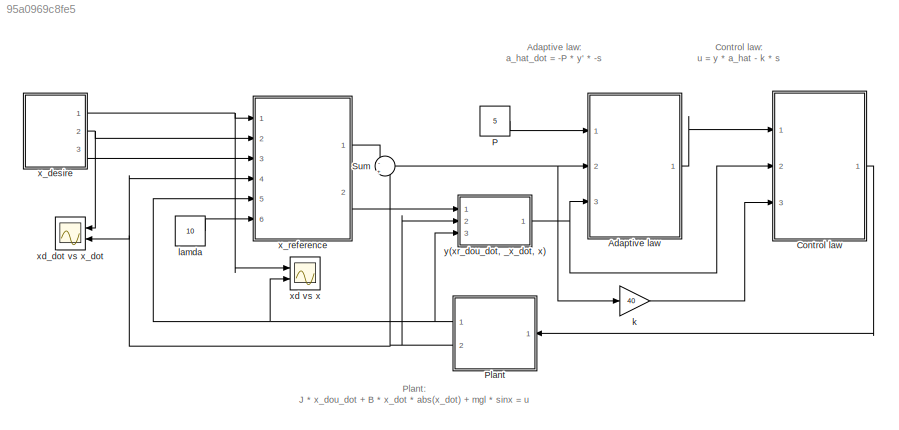
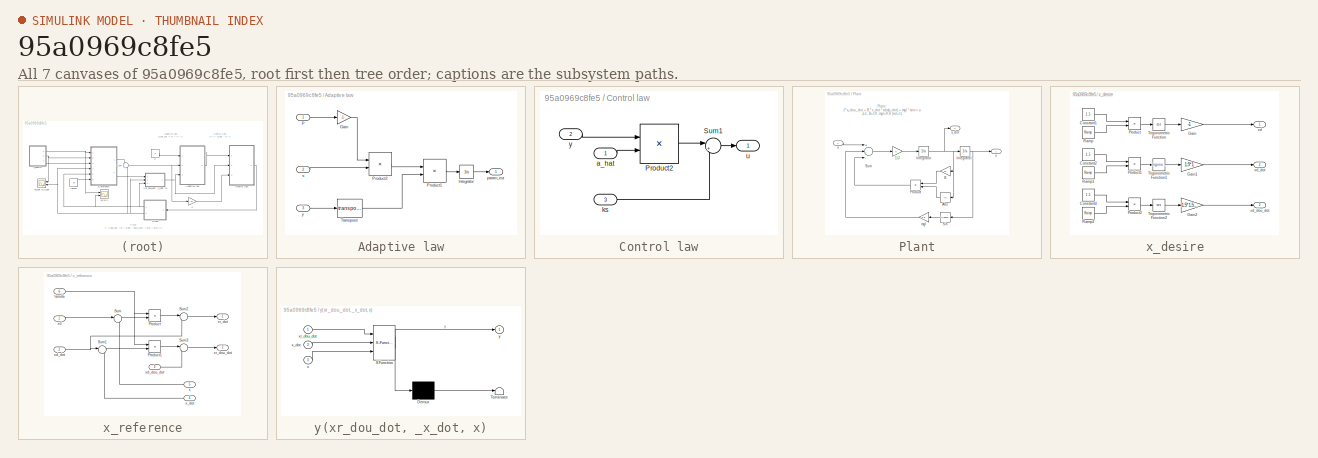
[diagram: thumbnail index - all 7 canvases of the model, root first then tree order]
MODEL slx_95a0969c8fe5
KIND model
CONFIG AbsTol = auto
CONFIG EnableMultiTasking = off
CONFIG FixedStep = auto
CONFIG MaxStep = auto
CONFIG MinStep = auto
CONFIG RelTol = 1e-3
CONFIG SampleTimeConstraint = Unconstrained
CONFIG Solver = ode45
CONFIG SolverName = ode45
CONFIG StartTime = 0.0
CONFIG StopTime = 20
BLOCK [SubSystem] Adaptive law
  Ports = [3, 1]
  RequestExecContextInheritance = off
BLOCK [Gain] Adaptive law/Gain
  Gain = -1
  OutDataTypeStr = Inherit: Inherit via internal rule
  ParamDataTypeStr = Inherit: Inherit via internal rule
  SaturateOnIntegerOverflow = off
BLOCK [Integrator] Adaptive law/Integrator
  Ports = [1, 1]
BLOCK [Inport] Adaptive law/P
  IconDisplay = Port number
BLOCK [Product] Adaptive law/Product1
  InputSameDT = off
  OutDataTypeStr = Inherit: Inherit via internal rule
  Ports = [2, 1]
  SaturateOnIntegerOverflow = off
BLOCK [Product] Adaptive law/Product2
  InputSameDT = off
  OutDataTypeStr = Inherit: Inherit via internal rule
  Ports = [2, 1]
  SaturateOnIntegerOverflow = off
BLOCK [Math] Adaptive law/Transpose
  Operator = transpose
  Ports = [1, 1]
BLOCK [Outport] Adaptive law/param_est
  IconDisplay = Port number
BLOCK [Inport] Adaptive law/s
  IconDisplay = Port number
  Port = 2
BLOCK [Inport] Adaptive law/y
  IconDisplay = Port number
  Port = 3
BLOCK [SubSystem] Control law
  Ports = [3, 1]
  RequestExecContextInheritance = off
BLOCK [Product] Control law/Product2
  InputSameDT = off
  Multiplication = Matrix(*)
  OutDataTypeStr = Inherit: Inherit via internal rule
  Ports = [2, 1]
  SaturateOnIntegerOverflow = off
BLOCK [Sum] Control law/Sum1
  IconShape = round
  InputSameDT = off
  Inputs = |+-
  OutDataTypeStr = Inherit: Inherit via internal rule
  Ports = [2, 1]
  SaturateOnIntegerOverflow = off
BLOCK [Inport] Control law/a_hat
  IconDisplay = Port number
BLOCK [Inport] Control law/ks
  IconDisplay = Port number
  Port = 3
BLOCK [Outport] Control law/u
  IconDisplay = Port number
BLOCK [Inport] Control law/y
  IconDisplay = Port number
  Port = 2
BLOCK [Constant] P
  Value = 5
BLOCK [SubSystem] Plant
  Ports = [1, 2]
  RequestExecContextInheritance = off
BLOCK [Gain] Plant/1//J
  OutDataTypeStr = Inherit: Inherit via internal rule
  ParamDataTypeStr = Inherit: Inherit via internal rule
  SaturateOnIntegerOverflow = off
BLOCK [Abs] Plant/Abs
  SaturateOnIntegerOverflow = off
BLOCK [Gain] Plant/B
  Gain = 10
  OutDataTypeStr = Inherit: Inherit via internal rule
  ParamDataTypeStr = Inherit: Inherit via internal rule
  SaturateOnIntegerOverflow = off
BLOCK [Integrator] Plant/Integrator
  Ports = [1, 1]
BLOCK [Integrator] Plant/Integrator1
  Ports = [1, 1]
BLOCK [Product] Plant/Product
  InputSameDT = off
  OutDataTypeStr = Inherit: Inherit via internal rule
  Ports = [2, 1]
  RndMeth = Floor
  SaturateOnIntegerOverflow = off
BLOCK [Trigonometry] Plant/Sin
  Ports = [1, 1]
BLOCK [Sum] Plant/Sum
  InputSameDT = off
  Inputs = +--
  OutDataTypeStr = Inherit: Inherit via internal rule
  Ports = [3, 1]
  SaturateOnIntegerOverflow = off
BLOCK [Gain] Plant/mgl
  Gain = 9.8
  OutDataTypeStr = Inherit: Inherit via internal rule
  ParamDataTypeStr = Inherit: Inherit via internal rule
  SaturateOnIntegerOverflow = off
BLOCK [Inport] Plant/u
  IconDisplay = Port number
BLOCK [Outport] Plant/x
  IconDisplay = Port number
BLOCK [Outport] Plant/x_dot
  IconDisplay = Port number
  Port = 2
BLOCK [Sum] Sum
  IconShape = round
  InputSameDT = off
  Inputs = -|+
  OutDataTypeStr = Inherit: Inherit via internal rule
  Ports = [2, 1]
  SaturateOnIntegerOverflow = off
BLOCK [Gain] k
  Gain = 40
  OutDataTypeStr = Inherit: Inherit via internal rule
  ParamDataTypeStr = Inherit: Inherit via internal rule
  SaturateOnIntegerOverflow = off
BLOCK [Constant] lamda
  Value = 10
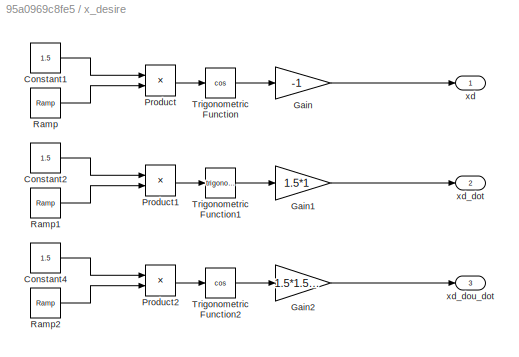
BLOCK [SubSystem] x_desire
  Ports = [0, 3]
  RequestExecContextInheritance = off
BLOCK [Constant] x_desire/Constant1
  Value = 1.5
BLOCK [Constant] x_desire/Constant2
  Value = 1.5
BLOCK [Constant] x_desire/Constant4
  Value = 1.5
BLOCK [Gain] x_desire/Gain
  Gain = -1
  OutDataTypeStr = Inherit: Inherit via internal rule
  ParamDataTypeStr = Inherit: Inherit via internal rule
  SaturateOnIntegerOverflow = off
BLOCK [Gain] x_desire/Gain1
  Gain = 1.5*1
  OutDataTypeStr = Inherit: Inherit via internal rule
  ParamDataTypeStr = Inherit: Inherit via internal rule
  SaturateOnIntegerOverflow = off
BLOCK [Gain] x_desire/Gain2
  Gain = 1.5*1.5*1
  OutDataTypeStr = Inherit: Inherit via internal rule
  ParamDataTypeStr = Inherit: Inherit via internal rule
  SaturateOnIntegerOverflow = off
BLOCK [Product] x_desire/Product
  InputSameDT = off
  OutDataTypeStr = Inherit: Inherit via internal rule
  Ports = [2, 1]
  SaturateOnIntegerOverflow = off
BLOCK [Product] x_desire/Product1
  InputSameDT = off
  OutDataTypeStr = Inherit: Inherit via internal rule
  Ports = [2, 1]
  SaturateOnIntegerOverflow = off
BLOCK [Product] x_desire/Product2
  InputSameDT = off
  OutDataTypeStr = Inherit: Inherit via internal rule
  Ports = [2, 1]
  SaturateOnIntegerOverflow = off
BLOCK [Reference] x_desire/Ramp  REF=simulink/Sources/Ramp
  Ports = [0, 1]
  SourceBlock = simulink/Sources/Ramp
  SourceProductBaseCode = SL
  SourceProductName = Simulink
  SourceType = Ramp
BLOCK [Reference] x_desire/Ramp1  REF=simulink/Sources/Ramp
  Ports = [0, 1]
  SourceBlock = simulink/Sources/Ramp
  SourceProductBaseCode = SL
  SourceProductName = Simulink
  SourceType = Ramp
BLOCK [Reference] x_desire/Ramp2  REF=simulink/Sources/Ramp
  Ports = [0, 1]
  SourceBlock = simulink/Sources/Ramp
  SourceProductBaseCode = SL
  SourceProductName = Simulink
  SourceType = Ramp
BLOCK [Trigonometry] x_desire/Trigonometric Function
  Operator = cos
  Ports = [1, 1]
BLOCK [Trigonometry] x_desire/Trigonometric Function1
  Ports = [1, 1]
BLOCK [Trigonometry] x_desire/Trigonometric Function2
  Operator = cos
  Ports = [1, 1]
BLOCK [Outport] x_desire/xd
  IconDisplay = Port number
BLOCK [Outport] x_desire/xd_dot 
  IconDisplay = Port number
  Port = 2
BLOCK [Outport] x_desire/xd_dou_dot
  IconDisplay = Port number
  Port = 3
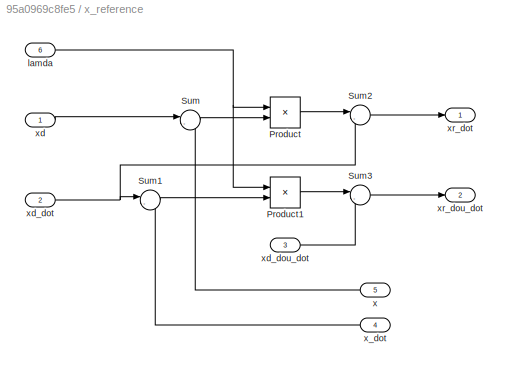
BLOCK [SubSystem] x_reference
  Ports = [6, 2]
  RequestExecContextInheritance = off
BLOCK [Product] x_reference/Product
  InputSameDT = off
  OutDataTypeStr = Inherit: Inherit via internal rule
  Ports = [2, 1]
  RndMeth = Floor
  SaturateOnIntegerOverflow = off
BLOCK [Product] x_reference/Product1
  InputSameDT = off
  OutDataTypeStr = Inherit: Inherit via internal rule
  Ports = [2, 1]
  RndMeth = Floor
  SaturateOnIntegerOverflow = off
BLOCK [Sum] x_reference/Sum
  IconShape = round
  InputSameDT = off
  Inputs = |-+
  OutDataTypeStr = Inherit: Inherit via internal rule
  Ports = [2, 1]
  SaturateOnIntegerOverflow = off
BLOCK [Sum] x_reference/Sum1
  IconShape = round
  InputSameDT = off
  Inputs = |-+
  OutDataTypeStr = Inherit: Inherit via internal rule
  Ports = [2, 1]
  SaturateOnIntegerOverflow = off
BLOCK [Sum] x_reference/Sum2
  IconShape = round
  InputSameDT = off
  Inputs = |-+
  OutDataTypeStr = Inherit: Inherit via internal rule
  Ports = [2, 1]
  SaturateOnIntegerOverflow = off
BLOCK [Sum] x_reference/Sum3
  IconShape = round
  InputSameDT = off
  Inputs = |-+
  OutDataTypeStr = Inherit: Inherit via internal rule
  Ports = [2, 1]
  SaturateOnIntegerOverflow = off
BLOCK [Inport] x_reference/lamda
  IconDisplay = Port number
  Port = 6
BLOCK [Inport] x_reference/x
  IconDisplay = Port number
  Port = 5
BLOCK [Inport] x_reference/x_dot
  IconDisplay = Port number
  Port = 4
BLOCK [Inport] x_reference/xd 
  IconDisplay = Port number
BLOCK [Inport] x_reference/xd_dot
  IconDisplay = Port number
  Port = 2
BLOCK [Inport] x_reference/xd_dou_dot
  IconDisplay = Port number
  Port = 3
BLOCK [Outport] x_reference/xr_dot
  IconDisplay = Port number
BLOCK [Outport] x_reference/xr_dou_dot
  IconDisplay = Port number
  Port = 2
BLOCK [Scope] xd vs x
  Floating = off
  NumInputPorts = 2
  Ports = [2]
  ScopeSpecificationString = Simulink.scopes.TimeScopeBlockCfg('CurrentConfiguration', extmgr.ConfigurationSet(extmgr.Configuration('Core','General UI',true),extmgr.Configuration('Core','Source UI',true),extmgr.Configuration('Sources','WiredSimulink',true),extmgr.Configuration('Visuals','Time Domain',true,'SerializedDisplays',{struct('MinYLimReal','-1.25254','MaxYLimReal','1.25263','YLabelReal','','MinYLimMag','0.00000','MaxY...<+1369ch>
BLOCK [Scope] xd_dot vs x_dot
  Floating = off
  NumInputPorts = 2
  Ports = [2]
  ScopeSpecificationString = Simulink.scopes.TimeScopeBlockCfg('CurrentConfiguration', extmgr.ConfigurationSet(extmgr.Configuration('Core','General UI',true),extmgr.Configuration('Core','Source UI',true),extmgr.Configuration('Sources','WiredSimulink',true,'DataLoggingVariableName','ScopeData1'),extmgr.Configuration('Visuals','Time Domain',true,'SerializedDisplays',{struct('MinYLimReal','-2.94648','MaxYLimReal','0.57281','YLab...<+1452ch>
BLOCK [SubSystem] y(xr_dou_dot, _x_dot, x)
  ErrorFcn = Stateflow.Translate.translate
  PermitHierarchicalResolution = ExplicitOnly
  Ports = [3, 1]
  RequestExecContextInheritance = off
  SFBlockType = MATLAB Function
  TreatAsAtomicUnit = on
BLOCK [Demux] y(xr_dou_dot, _x_dot, x)/ Demux 
  Outputs = 1
  Ports = [1, 1]
BLOCK [S-Function] y(xr_dou_dot, _x_dot, x)/ SFunction 
  EnableBusSupport = on
  FunctionName = sf_sfun
  PortCounts = [3 2]
  Ports = [3, 2]
  SFcnIsStateOwnerBlock = off
  SFunctionDeploymentMode = off
  Tag = Stateflow S-Function Adaptive_control 2
BLOCK [Terminator] y(xr_dou_dot, _x_dot, x)/ Terminator 
BLOCK [Inport] y(xr_dou_dot, _x_dot, x)/x
  IconDisplay = Port number
  Port = 3
BLOCK [Inport] y(xr_dou_dot, _x_dot, x)/x_dot
  IconDisplay = Port number
  Port = 2
BLOCK [Inport] y(xr_dou_dot, _x_dot, x)/xr_dou_dot
  IconDisplay = Port number
BLOCK [Outport] y(xr_dou_dot, _x_dot, x)/y
  IconDisplay = Port number
ANNOTATION (root): Adaptive law: a_hat_dot = -P * y' * -s
ANNOTATION (root): Control law: u = y * a_hat - k * s
ANNOTATION (root): Plant: J * x_dou_dot + B * x_dot * abs(x_dot) + mgl * sinx = u
ANNOTATION Plant: Plant: J * x_dou_dot + B * x_dot * abs(x_dot) + mgl * sinx = u J=1, B=10, mgl=9.8 (m,l=1)
LINE Adaptive law/Gain:1 -> Adaptive law/Product2:1
LINE Adaptive law/Integrator:1 -> Adaptive law/param_est:1
LINE Adaptive law/P:1 -> Adaptive law/Gain:1
LINE Adaptive law/Product1:1 -> Adaptive law/Integrator:1
LINE Adaptive law/Product2:1 -> Adaptive law/Product1:1
LINE Adaptive law/Transpose:1 -> Adaptive law/Product1:2
LINE Adaptive law/s:1 -> Adaptive law/Product2:2
LINE Adaptive law/y:1 -> Adaptive law/Transpose:1
LINE Adaptive law:1 -> Control law:1
LINE Control law/Product2:1 -> Control law/Sum1:1
LINE Control law/Sum1:1 -> Control law/u:1
LINE Control law/a_hat:1 -> Control law/Product2:2
LINE Control law/ks:1 -> Control law/Sum1:2
LINE Control law/y:1 -> Control law/Product2:1
LINE Control law:1 -> Plant:1
LINE P:1 -> Adaptive law:1
LINE Plant/1//J:1 -> Plant/Integrator:1
LINE Plant/Abs:1 -> Plant/Product:2
LINE Plant/B:1 -> Plant/Product:1
NET Plant/Integrator1:1 -> Plant/Sin:1, Plant/x:1
NET Plant/Integrator:1 -> Plant/Abs:1, Plant/B:1, Plant/Integrator1:1, Plant/x_dot:1
LINE Plant/Product:1 -> Plant/Sum:3
LINE Plant/Sin:1 -> Plant/mgl:1
LINE Plant/Sum:1 -> Plant/1//J:1
LINE Plant/mgl:1 -> Plant/Sum:2
LINE Plant/u:1 -> Plant/Sum:1
NET Plant:1 -> x_reference:5, xd vs x:2, y(xr_dou_dot, _x_dot, x):3
NET Plant:2 -> Sum:2, x_reference:4, xd_dot vs x_dot:2, y(xr_dou_dot, _x_dot, x):2
NET Sum:1 -> Adaptive law:2, k:1
LINE k:1 -> Control law:3
LINE lamda:1 -> x_reference:6
LINE x_desire/Constant1:1 -> x_desire/Product:1
LINE x_desire/Constant2:1 -> x_desire/Product1:1
LINE x_desire/Constant4:1 -> x_desire/Product2:1
LINE x_desire/Gain1:1 -> x_desire/xd_dot :1
LINE x_desire/Gain2:1 -> x_desire/xd_dou_dot:1
LINE x_desire/Gain:1 -> x_desire/xd:1
LINE x_desire/Product1:1 -> x_desire/Trigonometric Function1:1
LINE x_desire/Product2:1 -> x_desire/Trigonometric Function2:1
LINE x_desire/Product:1 -> x_desire/Trigonometric Function:1
LINE x_desire/Ramp1:1 -> x_desire/Product1:2
LINE x_desire/Ramp2:1 -> x_desire/Product2:2
LINE x_desire/Ramp:1 -> x_desire/Product:2
LINE x_desire/Trigonometric Function1:1 -> x_desire/Gain1:1
LINE x_desire/Trigonometric Function2:1 -> x_desire/Gain2:1
LINE x_desire/Trigonometric Function:1 -> x_desire/Gain:1
NET x_desire:1 -> x_reference:1, xd vs x:1
NET x_desire:2 -> x_reference:2, xd_dot vs x_dot:1
LINE x_desire:3 -> x_reference:3
LINE x_reference/Product1:1 -> x_reference/Sum3:1
LINE x_reference/Product:1 -> x_reference/Sum2:1
LINE x_reference/Sum1:1 -> x_reference/Product1:2
LINE x_reference/Sum2:1 -> x_reference/xr_dot:1
LINE x_reference/Sum3:1 -> x_reference/xr_dou_dot:1
LINE x_reference/Sum:1 -> x_reference/Product:2
NET x_reference/lamda:1 -> x_reference/Product1:1, x_reference/Product:1
LINE x_reference/x:1 -> x_reference/Sum:2
LINE x_reference/x_dot:1 -> x_reference/Sum1:2
LINE x_reference/xd :1 -> x_reference/Sum:1
NET x_reference/xd_dot:1 -> x_reference/Sum1:1, x_reference/Sum2:2
LINE x_reference/xd_dou_dot:1 -> x_reference/Sum3:2
LINE x_reference:1 -> Sum:1
LINE x_reference:2 -> y(xr_dou_dot, _x_dot, x):1
NET y(xr_dou_dot, _x_dot, x):1 -> Adaptive law:3, Control law:2
note: NET lines group one-source signal fan-out (src -> all destinations, sorted); 1:1 wires keep LINE
CHART y(xr_dou_dot, _x_dot, x) states=1 transitions=1
  STATE_LABEL 'eML_blk_kernel()'
  STATE_LABEL 'SCRIPT:\nfunction y = fcn(xr_dou_dot, x_dot, x)\n\ny = [xr_dou_dot, x_dot*abs(x_dot), sin(x)];\n\nend\n'
